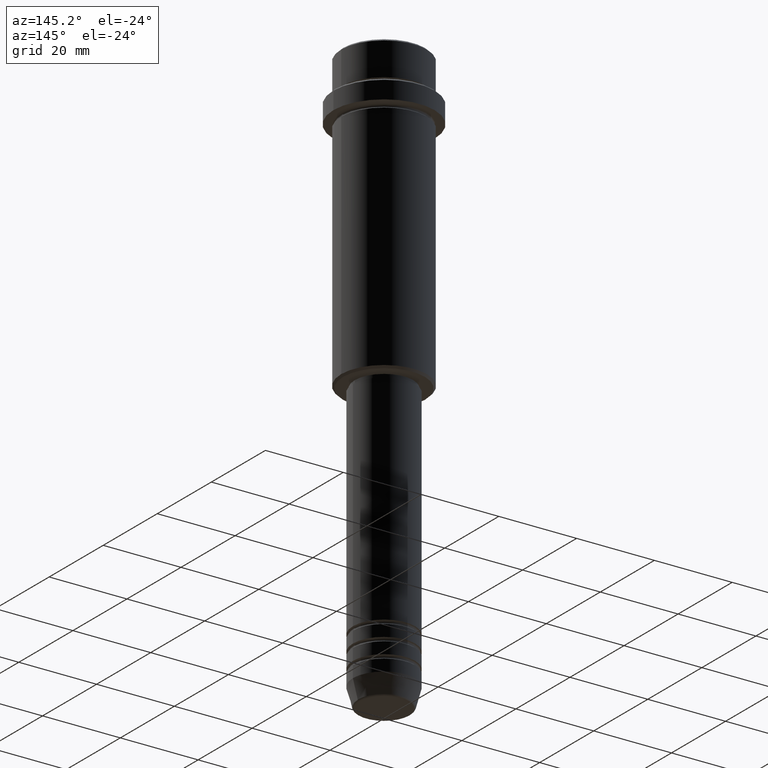
[diagram: clean part render]
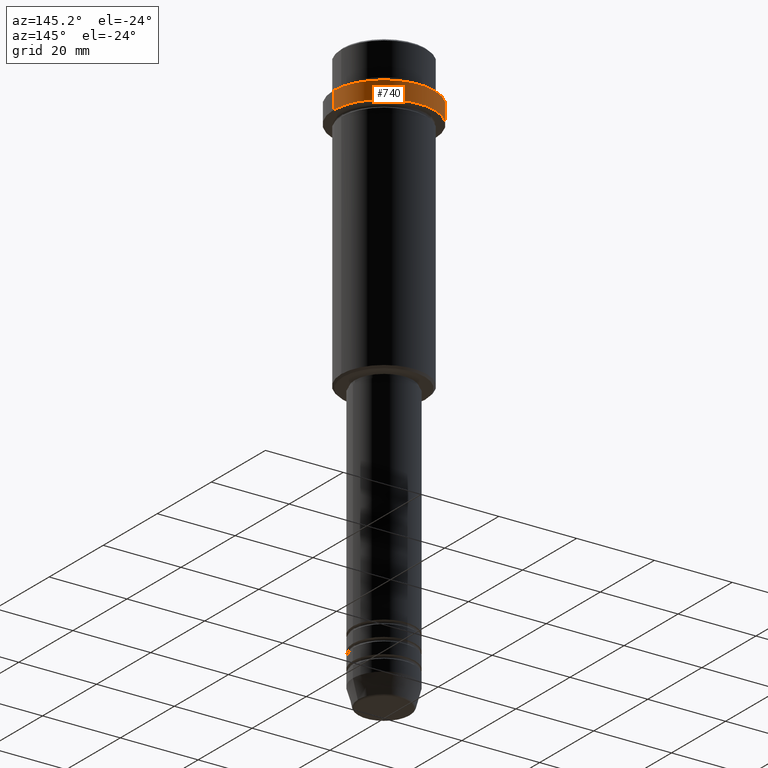
[diagram: same view with one face highlighted and labeled with its STEP entity id]
A machine part, auxiliary view. The second image highlights one B-rep face of the part: STEP entity #740.
In plain terms, the highlighted cylindrical surface (partial cylindrical patch) has radius 13 mm, axis along (-0, -0, 1).
Its self-contained STEP definition (entity closure, byte-faithful):
#34 = VECTOR ( 'NONE', #304, 1000.000000000000000 ) ;
#62 = ORIENTED_EDGE ( 'NONE', *, *, #151, .T. ) ;
#86 = VERTEX_POINT ( 'NONE', #829 ) ;
#151 = EDGE_CURVE ( 'NONE', #720, #933, #1149, .T. ) ;
#158 = DIRECTION ( 'NONE',  ( 0.000000000000000000, 0.000000000000000000, -1.000000000000000000 ) ) ;
#170 = AXIS2_PLACEMENT_3D ( 'NONE', #1290, #415, #1282 ) ;
#224 = EDGE_CURVE ( 'NONE', #86, #720, #361, .T. ) ;
#248 = DIRECTION ( 'NONE',  ( 1.000000000000000000, 0.000000000000000000, 0.000000000000000000 ) ) ;
#304 = DIRECTION ( 'NONE',  ( -0.000000000000000000, -0.000000000000000000, 1.000000000000000000 ) ) ;
#361 = CIRCLE ( 'NONE', #665, 13.00000000000000000 ) ;
#415 = DIRECTION ( 'NONE',  ( -0.000000000000000000, -0.000000000000000000, 1.000000000000000000 ) ) ;
#592 = CARTESIAN_POINT ( 'NONE',  ( -13.00000000000000000, 1.592040838891559095E-15, -15.00000000000000178 ) ) ;
#603 = VECTOR ( 'NONE', #966, 1000.000000000000000 ) ;
#665 = AXIS2_PLACEMENT_3D ( 'NONE', #1412, #1223, #248 ) ;
#720 = VERTEX_POINT ( 'NONE', #592 ) ;
#740 = ADVANCED_FACE ( 'NONE', ( #864 ), #954, .T. ) ;
#771 = CARTESIAN_POINT ( 'NONE',  ( 13.00000000000000000, 0.000000000000000000, -10.49999999999999289 ) ) ;
#789 = AXIS2_PLACEMENT_3D ( 'NONE', #916, #158, #998 ) ;
#822 = CARTESIAN_POINT ( 'NONE',  ( -13.00000000000000000, 1.592040838891559095E-15, -10.49999999999999289 ) ) ;
#829 = CARTESIAN_POINT ( 'NONE',  ( 13.00000000000000000, 0.000000000000000000, -15.00000000000000178 ) ) ;
#864 = FACE_OUTER_BOUND ( 'NONE', #1401, .T. ) ;
#899 = CARTESIAN_POINT ( 'NONE',  ( -13.00000000000000000, 1.592040838891559095E-15, 0.000000000000000000 ) ) ;
#916 = CARTESIAN_POINT ( 'NONE',  ( 0.000000000000000000, 0.000000000000000000, -10.49999999999999289 ) ) ;
#933 = VERTEX_POINT ( 'NONE', #822 ) ;
#954 = CYLINDRICAL_SURFACE ( 'NONE', #170, 13.00000000000000000 ) ;
#966 = DIRECTION ( 'NONE',  ( -0.000000000000000000, -0.000000000000000000, 1.000000000000000000 ) ) ;
#998 = DIRECTION ( 'NONE',  ( 1.000000000000000000, 0.000000000000000000, 0.000000000000000000 ) ) ;
#1026 = VERTEX_POINT ( 'NONE', #771 ) ;
#1059 = EDGE_CURVE ( 'NONE', #933, #1026, #1397, .T. ) ;
#1147 = LINE ( 'NONE', #1273, #34 ) ;
#1149 = LINE ( 'NONE', #899, #603 ) ;
#1200 = EDGE_CURVE ( 'NONE', #86, #1026, #1147, .T. ) ;
#1215 = ORIENTED_EDGE ( 'NONE', *, *, #224, .T. ) ;
#1223 = DIRECTION ( 'NONE',  ( -0.000000000000000000, -0.000000000000000000, 1.000000000000000000 ) ) ;
#1273 = CARTESIAN_POINT ( 'NONE',  ( 13.00000000000000000, 0.000000000000000000, 0.000000000000000000 ) ) ;
#1282 = DIRECTION ( 'NONE',  ( 1.000000000000000000, 0.000000000000000000, 0.000000000000000000 ) ) ;
#1290 = CARTESIAN_POINT ( 'NONE',  ( 0.000000000000000000, 0.000000000000000000, 0.000000000000000000 ) ) ;
#1395 = ORIENTED_EDGE ( 'NONE', *, *, #1059, .T. ) ;
#1397 = CIRCLE ( 'NONE', #789, 13.00000000000000000 ) ;
#1401 = EDGE_LOOP ( 'NONE', ( #1215, #62, #1395, #1403 ) ) ;
#1403 = ORIENTED_EDGE ( 'NONE', *, *, #1200, .F. ) ;
#1412 = CARTESIAN_POINT ( 'NONE',  ( 0.000000000000000000, 0.000000000000000000, -15.00000000000000178 ) ) ;